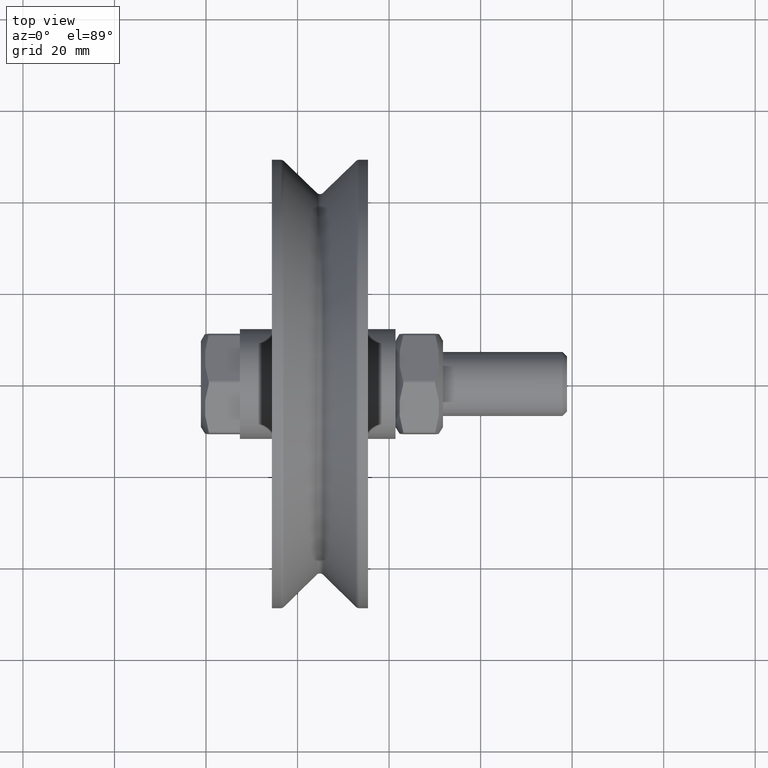
[diagram: clean part render]
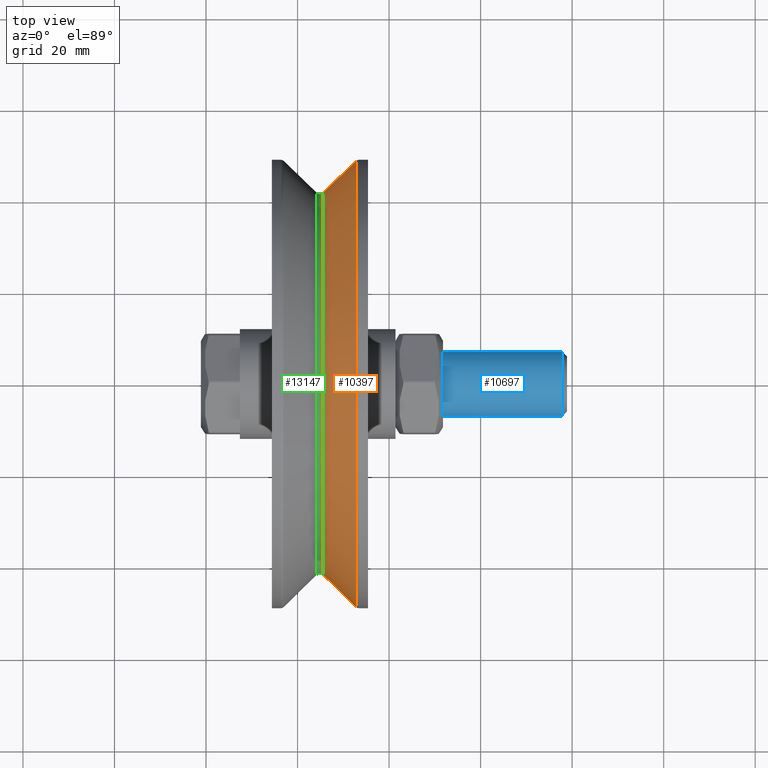
[diagram: same view with three faces highlighted in distinct colors, each labeled with its STEP entity id]
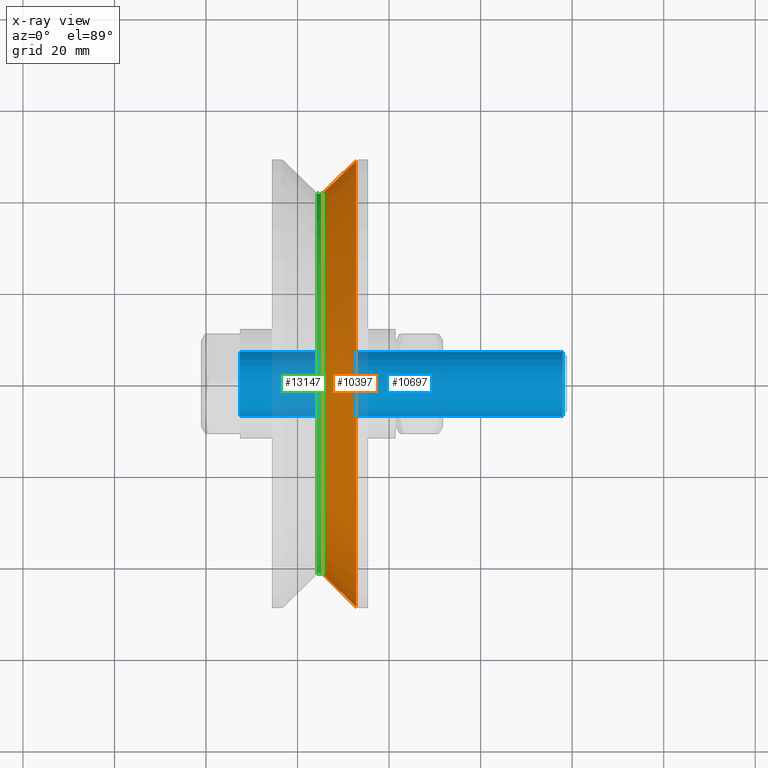
[diagram: x-ray of the same camera — body ghosted, the three highlighted faces saturated]
A machine part, top view with three faces highlighted in distinct colors.
The next image is the same camera in x-ray (body ghosted, the three faces saturated) — at least one of them is partly hidden behind the body in this view.
Their STEP definitions:

[orange] entity #10397 — the highlighted conical surface has half-angle 44 deg.
#322 = VERTEX_POINT ( 'NONE', #799 ) ;
#494 = DIRECTION ( 'NONE',  ( -1.424258607022215051E-16, 1.000000000000000000, 0.000000000000000000 ) ) ;
#576 = FACE_BOUND ( 'NONE', #13047, .T. ) ;
#799 = CARTESIAN_POINT ( 'NONE',  ( 7.879871434640613792, 48.71933980033865197, 0.000000000000000000 ) ) ;
#1110 = CIRCLE ( 'NONE', #3953, 48.71933980033865197 ) ;
#1522 = CARTESIAN_POINT ( 'NONE',  ( 7.879871434640620897, 2.387302349215263191E-15, 0.000000000000000000 ) ) ;
#2877 = AXIS2_PLACEMENT_3D ( 'NONE', #4330, #4284, #11065 ) ;
#3760 = DIRECTION ( 'NONE',  ( 1.000000000000000000, 1.298867817277494870E-16, -0.000000000000000000 ) ) ;
#3953 = AXIS2_PLACEMENT_3D ( 'NONE', #9599, #14069, #8413 ) ;
#4284 = DIRECTION ( 'NONE',  ( 1.000000000000000000, 1.298867817277494870E-16, -0.000000000000000000 ) ) ;
#4330 = CARTESIAN_POINT ( 'NONE',  ( 0.6946583704590010289, 1.454038148280531318E-15, 0.000000000000000000 ) ) ;
#5823 = VERTEX_POINT ( 'NONE', #6329 ) ;
#6329 = CARTESIAN_POINT ( 'NONE',  ( 0.6946583704589955888, 41.78066019966134803, 0.000000000000000000 ) ) ;
#6416 = CONICAL_SURFACE ( 'NONE', #11931, 48.71933980033865197, 0.7679448708775031829 ) ;
#8306 = ORIENTED_EDGE ( 'NONE', *, *, #11412, .F. ) ;
#8413 = DIRECTION ( 'NONE',  ( -1.424258607022215051E-16, 1.000000000000000000, 0.000000000000000000 ) ) ;
#8983 = CIRCLE ( 'NONE', #2877, 41.78066019966134803 ) ;
#9000 = EDGE_CURVE ( 'NONE', #5823, #5823, #8983, .T. ) ;
#9548 = EDGE_LOOP ( 'NONE', ( #8306 ) ) ;
#9599 = CARTESIAN_POINT ( 'NONE',  ( 7.879871434640620897, 2.387302349215263191E-15, 0.000000000000000000 ) ) ;
#9741 = ORIENTED_EDGE ( 'NONE', *, *, #9000, .T. ) ;
#10288 = FACE_OUTER_BOUND ( 'NONE', #9548, .T. ) ;
#10397 = ADVANCED_FACE ( 'NONE', ( #576, #10288 ), #6416, .T. ) ;
#11065 = DIRECTION ( 'NONE',  ( -1.297492867877531113E-16, 1.000000000000000000, 0.000000000000000000 ) ) ;
#11412 = EDGE_CURVE ( 'NONE', #322, #322, #1110, .T. ) ;
#11931 = AXIS2_PLACEMENT_3D ( 'NONE', #1522, #3760, #494 ) ;
#13047 = EDGE_LOOP ( 'NONE', ( #9741 ) ) ;
#14069 = DIRECTION ( 'NONE',  ( 1.000000000000000000, 1.298867817277494870E-16, -0.000000000000000000 ) ) ;

[blue] entity #10697 — the highlighted cylindrical surface (bore or boss wall) has radius 7 mm, axis along (1, 0, 0).
#765 = FACE_OUTER_BOUND ( 'NONE', #7017, .T. ) ;
#2300 = DIRECTION ( 'NONE',  ( -0.000000000000000000, 1.000000000000000000, -0.000000000000000000 ) ) ;
#2348 = EDGE_LOOP ( 'NONE', ( #5220 ) ) ;
#3215 = DIRECTION ( 'NONE',  ( 0.000000000000000000, 0.000000000000000000, -1.000000000000000000 ) ) ;
#3764 = FACE_OUTER_BOUND ( 'NONE', #2348, .T. ) ;
#4296 = AXIS2_PLACEMENT_3D ( 'NONE', #12105, #12056, #5326 ) ;
#5220 = ORIENTED_EDGE ( 'NONE', *, *, #12006, .T. ) ;
#5326 = DIRECTION ( 'NONE',  ( 0.000000000000000000, 0.000000000000000000, 1.000000000000000000 ) ) ;
#5530 = CARTESIAN_POINT ( 'NONE',  ( 0.000000000000000000, 1.000000000000014655, 0.000000000000000000 ) ) ;
#5745 = AXIS2_PLACEMENT_3D ( 'NONE', #5530, #2300, #13544 ) ;
#6059 = CYLINDRICAL_SURFACE ( 'NONE', #6660, 7.000000000000000000 ) ;
#6410 = EDGE_CURVE ( 'NONE', #13897, #13897, #9286, .T. ) ;
#6470 = DIRECTION ( 'NONE',  ( -0.000000000000000000, -1.000000000000000000, -0.000000000000000000 ) ) ;
#6565 = CARTESIAN_POINT ( 'NONE',  ( 0.000000000000000000, 71.50000000000000000, 0.000000000000000000 ) ) ;
#6660 = AXIS2_PLACEMENT_3D ( 'NONE', #6565, #6470, #3215 ) ;
#6702 = VERTEX_POINT ( 'NONE', #11001 ) ;
#7017 = EDGE_LOOP ( 'NONE', ( #10223 ) ) ;
#7083 = CIRCLE ( 'NONE', #5745, 7.000000000000000000 ) ;
#9286 = CIRCLE ( 'NONE', #4296, 7.000000000000000000 ) ;
#9778 = CARTESIAN_POINT ( 'NONE',  ( 0.000000000000000000, 71.50000000000000000, 7.000000000000000000 ) ) ;
#10223 = ORIENTED_EDGE ( 'NONE', *, *, #6410, .F. ) ;
#10697 = ADVANCED_FACE ( 'NONE', ( #3764, #765 ), #6059, .T. ) ;
#11001 = CARTESIAN_POINT ( 'NONE',  ( 0.000000000000000000, 1.000000000000014655, 7.000000000000000000 ) ) ;
#12006 = EDGE_CURVE ( 'NONE', #6702, #6702, #7083, .T. ) ;
#12056 = DIRECTION ( 'NONE',  ( 0.000000000000000000, 1.000000000000000000, 0.000000000000000000 ) ) ;
#12105 = CARTESIAN_POINT ( 'NONE',  ( 0.000000000000000000, 71.50000000000000000, 0.000000000000000000 ) ) ;
#13544 = DIRECTION ( 'NONE',  ( 0.000000000000000000, 0.000000000000000000, 1.000000000000000000 ) ) ;
#13897 = VERTEX_POINT ( 'NONE', #9778 ) ;

[green] entity #13147 — the highlighted toroidal blend (fillet) surface has major radius 42.5 mm and minor (blend) radius 1 mm.
#242 = DIRECTION ( 'NONE',  ( -1.298867817277494870E-16, 1.000000000000000000, 0.000000000000000000 ) ) ;
#476 = DIRECTION ( 'NONE',  ( -1.297492867877531113E-16, 1.000000000000000000, 0.000000000000000000 ) ) ;
#987 = EDGE_LOOP ( 'NONE', ( #14253 ) ) ;
#1423 = CARTESIAN_POINT ( 'NONE',  ( 5.204170427930421283E-15, 0.000000000000000000, 0.000000000000000000 ) ) ;
#1520 = DIRECTION ( 'NONE',  ( 1.000000000000000000, 1.298867817277494870E-16, -0.000000000000000000 ) ) ;
#1874 = CARTESIAN_POINT ( 'NONE',  ( -0.6946583704589960329, 41.78066019966134803, 0.000000000000000000 ) ) ;
#2877 = AXIS2_PLACEMENT_3D ( 'NONE', #4330, #4284, #11065 ) ;
#4234 = AXIS2_PLACEMENT_3D ( 'NONE', #1423, #1520, #242 ) ;
#4284 = DIRECTION ( 'NONE',  ( 1.000000000000000000, 1.298867817277494870E-16, -0.000000000000000000 ) ) ;
#4330 = CARTESIAN_POINT ( 'NONE',  ( 0.6946583704590010289, 1.454038148280531318E-15, 0.000000000000000000 ) ) ;
#4807 = CARTESIAN_POINT ( 'NONE',  ( -0.6946583704589905928, 1.273584268002208081E-15, 0.000000000000000000 ) ) ;
#5823 = VERTEX_POINT ( 'NONE', #6329 ) ;
#6329 = CARTESIAN_POINT ( 'NONE',  ( 0.6946583704589955888, 41.78066019966134803, 0.000000000000000000 ) ) ;
#6651 = EDGE_LOOP ( 'NONE', ( #9963 ) ) ;
#8983 = CIRCLE ( 'NONE', #2877, 41.78066019966134803 ) ;
#9000 = EDGE_CURVE ( 'NONE', #5823, #5823, #8983, .T. ) ;
#9963 = ORIENTED_EDGE ( 'NONE', *, *, #13626, .T. ) ;
#10385 = VERTEX_POINT ( 'NONE', #1874 ) ;
#10531 = DIRECTION ( 'NONE',  ( 1.000000000000000000, 1.298867817277494870E-16, -0.000000000000000000 ) ) ;
#11065 = DIRECTION ( 'NONE',  ( -1.297492867877531113E-16, 1.000000000000000000, 0.000000000000000000 ) ) ;
#11198 = AXIS2_PLACEMENT_3D ( 'NONE', #4807, #10531, #476 ) ;
#11463 = FACE_OUTER_BOUND ( 'NONE', #987, .T. ) ;
#12004 = CIRCLE ( 'NONE', #11198, 41.78066019966134803 ) ;
#12891 = TOROIDAL_SURFACE ( 'NONE', #4234, 42.50000000000000000, 1.000000000000002887 ) ;
#13147 = ADVANCED_FACE ( 'NONE', ( #13421, #11463 ), #12891, .F. ) ;
#13421 = FACE_OUTER_BOUND ( 'NONE', #6651, .T. ) ;
#13626 = EDGE_CURVE ( 'NONE', #10385, #10385, #12004, .T. ) ;
#14253 = ORIENTED_EDGE ( 'NONE', *, *, #9000, .F. ) ;